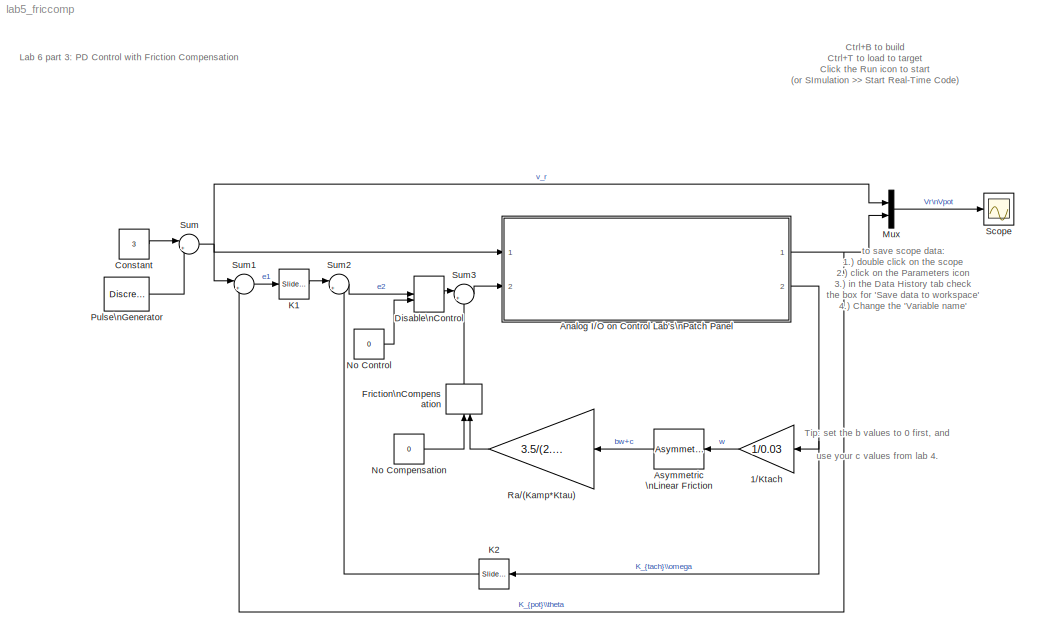
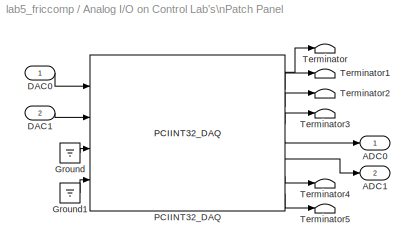
MODEL lab5_friccomp
KIND model
BLOCK [Gain] 1//Ktach
  Gain = 1/0.03
  OutDataTypeStr = Inherit: Inherit via internal rule
  ParamDataTypeStr = Inherit: Inherit via internal rule
  SID = 1
  SaturateOnIntegerOverflow = off
BLOCK [SubSystem] Analog I//O on Control Lab's\nPatch Panel
  Description = Gives access to the Analog I/O ports on the patch panel used at UIUC's control labs.  Connects your digital controller to the analog I/O panel.  You can read in analog data through the ADCs (analog input) and output data using the DACs (analog output)
  Ports = [2, 2]
  RequestExecContextInheritance = off
  SID = 2
  Variant = off
BLOCK [Outport] Analog I//O on Control Lab's\nPatch Panel/ADC0
  IconDisplay = Port number
  SID = 14
BLOCK [Outport] Analog I//O on Control Lab's\nPatch Panel/ADC1
  IconDisplay = Port number
  Port = 2
  SID = 15
BLOCK [Inport] Analog I//O on Control Lab's\nPatch Panel/DAC0
  IconDisplay = Port number
  SID = 3
BLOCK [Inport] Analog I//O on Control Lab's\nPatch Panel/DAC1
  IconDisplay = Port number
  Port = 2
  SID = 4
BLOCK [Ground] Analog I//O on Control Lab's\nPatch Panel/Ground
  SID = 5
BLOCK [Ground] Analog I//O on Control Lab's\nPatch Panel/Ground1
  SID = 6
BLOCK [Reference] Analog I//O on Control Lab's\nPatch Panel/PCIINT32_DAQ  REF=coecsllib/Control Systems Lab\nBoard Series/PCIINT32_DAQ
  Ports = [4, 8]
  SID = 7
  SourceBlock = coecsllib/Control Systems Lab\nBoard Series/PCIINT32_DAQ
  SourceType = Encoder/ADC/DAC Input/Output Module
  baddr2 = findPCIint32BoardAddress3
  sampleTime = str2num(get_param(bdroot, 'FixedStep'))
BLOCK [Terminator] Analog I//O on Control Lab's\nPatch Panel/Terminator
  SID = 8
BLOCK [Terminator] Analog I//O on Control Lab's\nPatch Panel/Terminator1
  SID = 9
BLOCK [Terminator] Analog I//O on Control Lab's\nPatch Panel/Terminator2
  SID = 10
BLOCK [Terminator] Analog I//O on Control Lab's\nPatch Panel/Terminator3
  SID = 11
BLOCK [Terminator] Analog I//O on Control Lab's\nPatch Panel/Terminator4
  SID = 12
BLOCK [Terminator] Analog I//O on Control Lab's\nPatch Panel/Terminator5
  SID = 13
BLOCK [Reference] Asymmetric \nLinear Friction  REF=fricblocks/Asymmetric \nLinear Friction
  Ports = [1, 1]
  SID = 16
  SourceBlock = fricblocks/Asymmetric \nLinear Friction
  SourceType = Asymmetric Linear Friction
  intercept1 = (9.4E-3)*0.9
  intercept2 = -(1.2E-2)*0.9
  slope1 = (6.6E-5)*14.6*.5
  slope2 = (5E-5)*18*.5
BLOCK [Constant] Constant
  SID = 17
  Value = 3
BLOCK [ManualSwitch] Disable\nControl
  SID = 18
BLOCK [ManualSwitch] Friction\nCompensation
  CurrentSetting = 0
  SID = 19
BLOCK [Reference] K1  REF=simulink/Math\nOperations/Slider\nGain
  Ports = [1, 1]
  SID = 20
  SourceBlock = simulink/Math\nOperations/Slider\nGain
  SourceProductBaseCode = SL
  SourceProductName = Simulink
  SourceType = Slider Gain
  gain = 1.500
  high = 2
  low = 0
BLOCK [Reference] K2  REF=simulink/Math\nOperations/Slider\nGain
  Ports = [1, 1]
  SID = 21
  SourceBlock = simulink/Math\nOperations/Slider\nGain
  SourceProductBaseCode = SL
  SourceProductName = Simulink
  SourceType = Slider Gain
  gain = 0
  high = 10
  low = 0
BLOCK [Mux] Mux
  DisplayOption = bar
  Inputs = 2
  Ports = [2, 1]
  SID = 22
BLOCK [Constant] No Compensation
  SID = 23
  Value = 0
BLOCK [Constant] No Control
  SID = 24
  Value = 0
BLOCK [DiscretePulseGenerator] Pulse\nGenerator
  Amplitude = 2
  Ports = [0, 1]
  PulseType = Time based
  PulseWidth = 50
  SID = 25
BLOCK [Gain] Ra//(Kamp*Ktau)
  Gain = 3.5/(2.4*0.055)
  OutDataTypeStr = Inherit: Inherit via internal rule
  ParamDataTypeStr = Inherit: Inherit via internal rule
  SID = 26
  SaturateOnIntegerOverflow = off
BLOCK [Scope] Scope
  NumInputPorts = 1
  Ports = [1]
  SID = 27
  ScopeSpecificationString = Simulink.scopes.TimeScopeBlockCfg('CurrentConfiguration', extmgr.ConfigurationSet(extmgr.Configuration('Core','General UI',true),extmgr.Configuration('Core','Source UI',true),extmgr.Configuration('Sources','WiredSimulink',true,'DataLogging',true,'DataLoggingVariableName','ScopeData1','DataLoggingSaveFormat','Array','DataLoggingDecimation','1','DataLoggingDecimateData',true),extmgr.Configuration('V...<+1785ch>
BLOCK [Sum] Sum
  IconShape = round
  InputSameDT = off
  Inputs = |++
  OutDataTypeStr = Inherit: Inherit via internal rule
  Ports = [2, 1]
  SID = 28
  SaturateOnIntegerOverflow = off
BLOCK [Sum] Sum1
  IconShape = round
  InputSameDT = off
  Inputs = |+-
  OutDataTypeStr = Inherit: Inherit via internal rule
  Ports = [2, 1]
  SID = 29
  SaturateOnIntegerOverflow = off
BLOCK [Sum] Sum2
  IconShape = round
  InputSameDT = off
  Inputs = |+-
  OutDataTypeStr = Inherit: Inherit via internal rule
  Ports = [2, 1]
  SID = 30
  SaturateOnIntegerOverflow = off
BLOCK [Sum] Sum3
  IconShape = round
  InputSameDT = off
  Inputs = |++
  OutDataTypeStr = Inherit: Inherit via internal rule
  Ports = [2, 1]
  SID = 31
  SaturateOnIntegerOverflow = off
ANNOTATION (root): Ctrl+B to build\nCtrl+T to load to target\nClick the Run icon to start \n(or SImulation >> Start Real-Time Code)
ANNOTATION (root): Lab 6 part 3: PD Control with Friction Compensation
ANNOTATION (root): Tip: set the b values to 0 first, and \nuse your c values from lab 4.
ANNOTATION (root): to save scope data:\n1.) double click on the scope\n2.) click on the Parameters icon \n3.) in the Data History tab check\n the box for 'Save data to workspace'\n4.) Change the 'Variable name' \nto save different plots
LINE 1//Ktach:1 -> Asymmetric \nLinear Friction:1
LINE Analog I//O on Control Lab's\nPatch Panel/DAC0:1 -> Analog I//O on Control Lab's\nPatch Panel/PCIINT32_DAQ:1
LINE Analog I//O on Control Lab's\nPatch Panel/DAC1:1 -> Analog I//O on Control Lab's\nPatch Panel/PCIINT32_DAQ:2
LINE Analog I//O on Control Lab's\nPatch Panel/Ground1:1 -> Analog I//O on Control Lab's\nPatch Panel/PCIINT32_DAQ:4
LINE Analog I//O on Control Lab's\nPatch Panel/Ground:1 -> Analog I//O on Control Lab's\nPatch Panel/PCIINT32_DAQ:3
LINE Analog I//O on Control Lab's\nPatch Panel/PCIINT32_DAQ:1 -> Analog I//O on Control Lab's\nPatch Panel/Terminator:1
LINE Analog I//O on Control Lab's\nPatch Panel/PCIINT32_DAQ:2 -> Analog I//O on Control Lab's\nPatch Panel/Terminator1:1
LINE Analog I//O on Control Lab's\nPatch Panel/PCIINT32_DAQ:3 -> Analog I//O on Control Lab's\nPatch Panel/Terminator2:1
LINE Analog I//O on Control Lab's\nPatch Panel/PCIINT32_DAQ:4 -> Analog I//O on Control Lab's\nPatch Panel/Terminator3:1
LINE Analog I//O on Control Lab's\nPatch Panel/PCIINT32_DAQ:5 -> Analog I//O on Control Lab's\nPatch Panel/ADC0:1
LINE Analog I//O on Control Lab's\nPatch Panel/PCIINT32_DAQ:6 -> Analog I//O on Control Lab's\nPatch Panel/ADC1:1
LINE Analog I//O on Control Lab's\nPatch Panel/PCIINT32_DAQ:7 -> Analog I//O on Control Lab's\nPatch Panel/Terminator4:1
LINE Analog I//O on Control Lab's\nPatch Panel/PCIINT32_DAQ:8 -> Analog I//O on Control Lab's\nPatch Panel/Terminator5:1
NET Analog I//O on Control Lab's\nPatch Panel:1 -> Mux:2, Sum1:2
NET Analog I//O on Control Lab's\nPatch Panel:2 -> 1//Ktach:1, K2:1
LINE Asymmetric \nLinear Friction:1 -> Ra//(Kamp*Ktau):1
LINE Constant:1 -> Sum:1
LINE Disable\nControl:1 -> Sum3:1
LINE Friction\nCompensation:1 -> Sum3:2
LINE K1:1 -> Sum2:1
LINE K2:1 -> Sum2:2
LINE Mux:1 -> Scope:1
LINE No Compensation:1 -> Friction\nCompensation:1
LINE No Control:1 -> Disable\nControl:2
LINE Pulse\nGenerator:1 -> Sum:2
LINE Ra//(Kamp*Ktau):1 -> Friction\nCompensation:2
LINE Sum1:1 -> K1:1
LINE Sum2:1 -> Disable\nControl:1
LINE Sum3:1 -> Analog I//O on Control Lab's\nPatch Panel:2
NET Sum:1 -> Analog I//O on Control Lab's\nPatch Panel:1, Mux:1, Sum1:1
note: NET lines group one-source signal fan-out (src -> all destinations, sorted); 1:1 wires keep LINE
